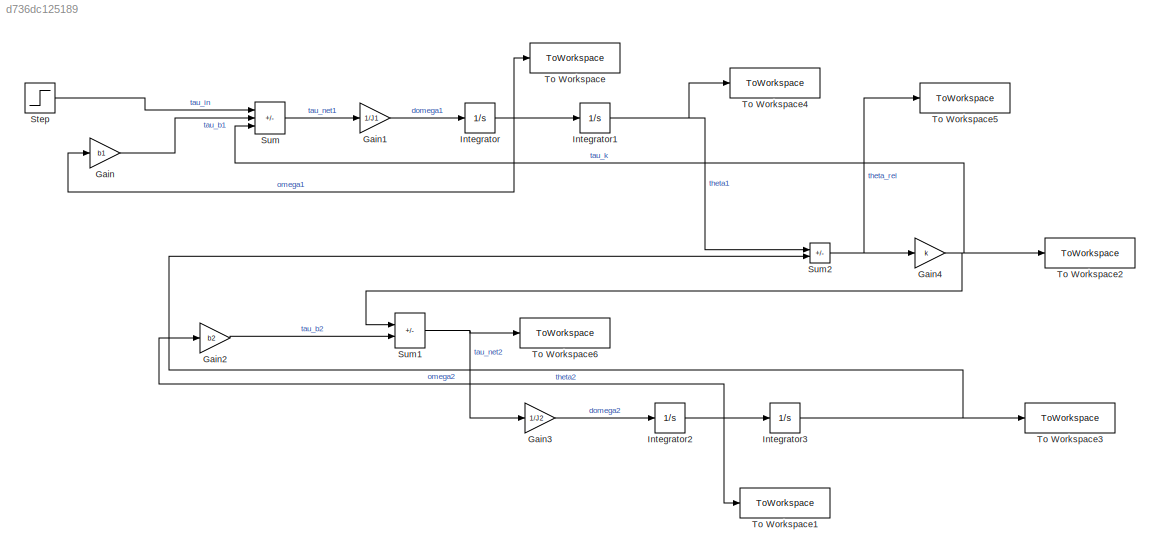
MODEL slx_d736dc125189
KIND model
CONFIG AbsTol = auto
CONFIG EnableMultiTasking = off
CONFIG FixedStep = 1
CONFIG MaxStep = auto
CONFIG MinStep = auto
CONFIG RelTol = 1e-3
CONFIG SampleTimeConstraint = Unconstrained
CONFIG SolverName = ode45
CONFIG StartTime = 0.0
CONFIG StopTime = 25
BLOCK [Gain] Gain
  Gain = b1
BLOCK [Gain] Gain1
  Gain = 1/J1
BLOCK [Gain] Gain2
  Gain = b2
BLOCK [Gain] Gain3
  Gain = 1/J2
BLOCK [Gain] Gain4
  Gain = k
BLOCK [Integrator] Integrator
  InitialCondition = omega10
BLOCK [Integrator] Integrator1
  InitialCondition = theta10
BLOCK [Integrator] Integrator2
  InitialCondition = omega20
BLOCK [Integrator] Integrator3
  InitialCondition = theta20
BLOCK [Step] Step
  After = A
  SampleTime = 0
  Time = 0
BLOCK [Sum] Sum
  IconShape = rectangular
  Inputs = +--
BLOCK [Sum] Sum1
  IconShape = rectangular
  Inputs = +-
BLOCK [Sum] Sum2
  IconShape = rectangular
  Inputs = +-
BLOCK [ToWorkspace] To Workspace
  FixptAsFi = on
  MaxDataPoints = inf
  SampleTime = -1
  SaveFormat = Timeseries
  VariableName = omega1_out
BLOCK [ToWorkspace] To Workspace1
  FixptAsFi = on
  MaxDataPoints = inf
  SampleTime = -1
  SaveFormat = Timeseries
  VariableName = omega2_out
BLOCK [ToWorkspace] To Workspace2
  FixptAsFi = on
  MaxDataPoints = inf
  SampleTime = -1
  SaveFormat = Timeseries
  VariableName = tau_k_out
BLOCK [ToWorkspace] To Workspace3
  FixptAsFi = on
  MaxDataPoints = inf
  SampleTime = -1
  SaveFormat = Timeseries
  VariableName = theta2_out
BLOCK [ToWorkspace] To Workspace4
  FixptAsFi = on
  MaxDataPoints = inf
  SampleTime = -1
  SaveFormat = Timeseries
  VariableName = theta1_out
BLOCK [ToWorkspace] To Workspace5
  FixptAsFi = on
  MaxDataPoints = inf
  SampleTime = -1
  SaveFormat = Timeseries
  VariableName = theta_rel_out
BLOCK [ToWorkspace] To Workspace6
  FixptAsFi = on
  MaxDataPoints = inf
  SampleTime = -1
  SaveFormat = Timeseries
  VariableName = tau_net2_out
LINE Gain1:1 -> Integrator:1
LINE Gain2:1 -> Sum1:2
LINE Gain3:1 -> Integrator2:1
NET Gain4:1 -> Sum1:1, Sum:3, To Workspace2:1
LINE Gain:1 -> Sum:2
NET Integrator1:1 -> Sum2:1, To Workspace4:1
NET Integrator2:1 -> Gain2:1, Integrator3:1, To Workspace1:1
NET Integrator3:1 -> Sum2:2, To Workspace3:1
NET Integrator:1 -> Gain:1, Integrator1:1, To Workspace:1
LINE Step:1 -> Sum:1
NET Sum1:1 -> Gain3:1, To Workspace6:1
NET Sum2:1 -> Gain4:1, To Workspace5:1
LINE Sum:1 -> Gain1:1
note: NET lines group one-source signal fan-out (src -> all destinations, sorted); 1:1 wires keep LINE
